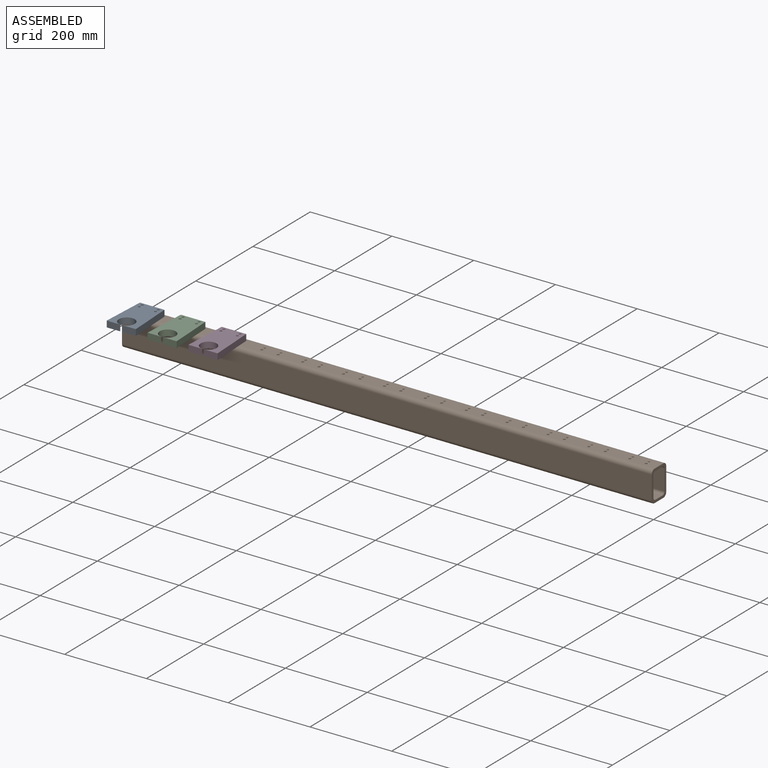
[diagram: assembled view]
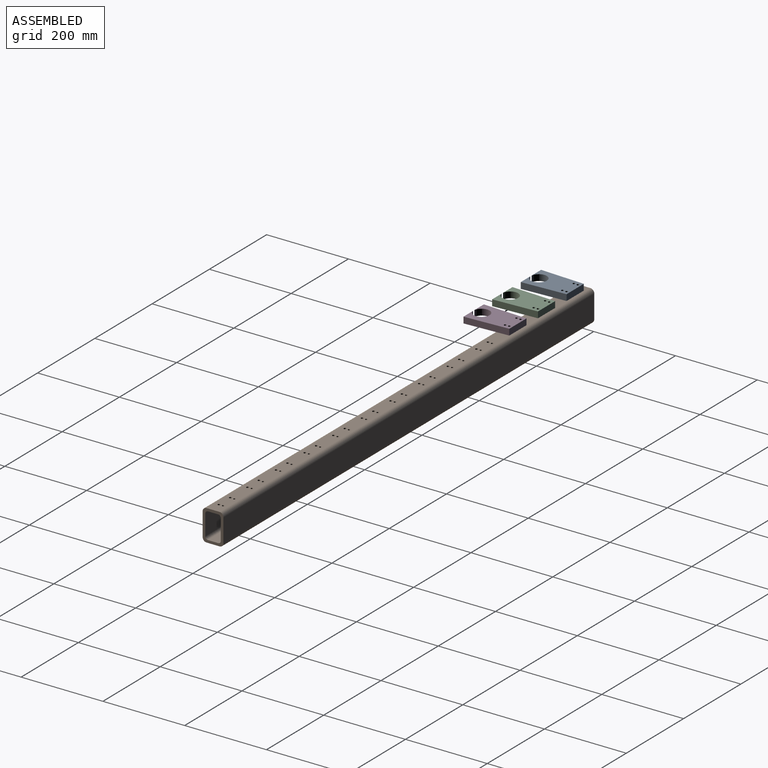
[diagram: assembled view, second angle]
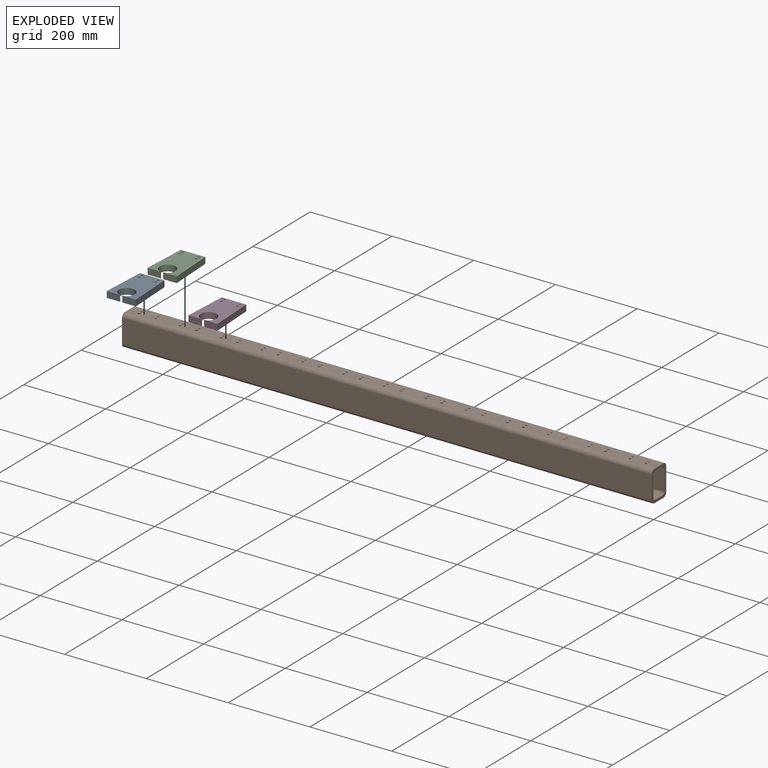
[diagram: exploded view]
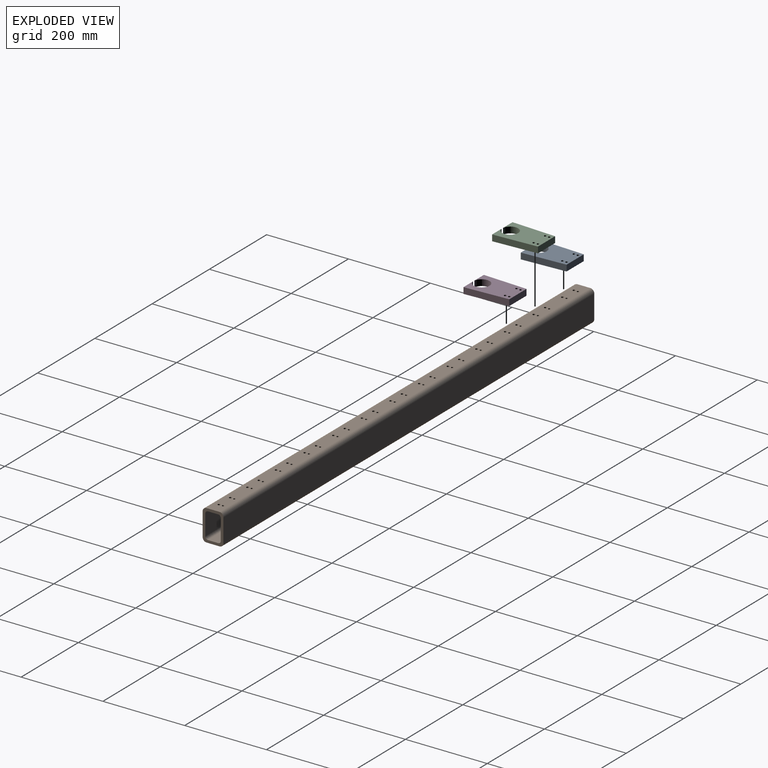
[diagram: exploded view, second angle]
ASSEMBLY  parts=4 mates=6
PART A: 12 faces, bbox 71.1x108.1x15 mm
  f0: plane 108.12x15mm, normal (-1,-0.05,0), area 1623.9mm2, adj f1,f9,f10,f11
  f1: plane 60x15mm, normal (0,-1,0), area 900mm2, adj f0,f2,f10,f11
  f2: plane 108.12x15mm, normal (1,-0.05,0), area 1623.9mm2, adj f1,f3,f10,f11
  f3: plane 33.21x15mm, normal (0,1,0), area 498.1mm2, adj f2,f4,f10,f11
  f4: cylinder r=19.5mm len=39mm, axis (0,0,-1), area 1767.5mm2, adj f3,f9,f10,f11
  f5: cylinder r=3mm len=15mm, axis (0,0,-1), area 282.7mm2, adj f10,f11
  f6: cylinder r=3mm len=15mm, axis (0,0,-1), area 282.7mm2, adj f10,f11
  f7: cylinder r=3mm len=15mm, axis (0,0,-1), area 282.7mm2, adj f10,f11
  f8: cylinder r=3mm len=15mm, axis (0,0,-1), area 282.7mm2, adj f10,f11
  f9: plane 33.21x15mm, normal (0,1,0), area 498.1mm2, adj f0,f4,f10,f11
  f10: plane 108.12x71.09mm, normal (0,0,1), area 5779.7mm2, adj f0,f1,f2,f3,f4,f5,f6,f7
  f11: plane 108.12x71.09mm, normal (0,0,-1), area 5779.7mm2, adj f0,f1,f2,f3,f4,f5,f6,f7
PART B: 122 faces, bbox 1295.4x50.8x76.2 mm
  f0: plane 76.2x50.8mm, normal (-1,0,0), area 1408.3mm2, adj f1,f3,f4,f5,f6,f7,f8,f9
  f1: plane 1295.4x57.15mm, normal (0,-1,0), area 74032.1mm2, adj f0,f2,f10,f12
  f2: plane 76.2x50.8mm, normal (1,0,0), area 1408.3mm2, adj f1,f3,f4,f5,f6,f7,f8,f9
  f3: plane 1295.4x57.15mm, normal (0,1,0), area 74032.1mm2, adj f0,f2,f11,f13
  f4: plane 1295.4x31.75mm, normal (0,0,1), area 39883.3mm2, adj f0,f2,f12,f13,f18,f20,f22,f24
  f5: plane 1295.4x31.75mm, normal (0,0,-1), area 41129mm2, adj f0,f2,f10,f11
  f6: plane 1295.4x50.8mm, normal (0,1,0), area 65806.3mm2, adj f0,f2,f14,f16
  f7: plane 1295.4x25.4mm, normal (0,0,1), area 32903.2mm2, adj f0,f2,f14,f15
  f8: plane 1295.4x50.8mm, normal (0,-1,0), area 65806.3mm2, adj f0,f2,f15,f17
  f9: plane 1295.4x25.4mm, normal (0,0,-1), area 32903.2mm2, adj f0,f2,f16,f17
  f10: cylinder r=9.53mm len=1295.4mm, axis (1,0,0), area 19381.6mm2, adj f0,f1,f2,f5
  f11: cylinder r=9.53mm len=1295.4mm, axis (-1,0,0), area 19381.6mm2, adj f0,f2,f3,f5
  f12: cylinder r=9.53mm len=1295.4mm, axis (-1,0,0), area 19381.6mm2, adj f0,f1,f2,f4
  f13: cylinder r=9.53mm len=1295.4mm, axis (1,0,0), area 19381.6mm2, adj f0,f2,f3,f4
  f14: cylinder r=6.35mm len=1295.4mm, axis (-1,0,0), area 12921mm2, adj f0,f2,f6,f7
  f15: cylinder r=6.35mm len=1295.4mm, axis (1,0,0), area 12921mm2, adj f0,f2,f7,f8
  f16: cylinder r=6.35mm len=1295.4mm, axis (1,0,0), area 12921mm2, adj f0,f2,f6,f9
  f17: cylinder r=6.35mm len=1295.4mm, axis (-1,0,0), area 12921mm2, adj f0,f2,f8,f9
  f18: cylinder r=2.5mm len=5mm, axis (0,0,1), area 78.5mm2, adj f4,f19
  f19: plane 5x5mm, normal (0,0,1), area 19.6mm2, adj f18
  f20: cylinder r=2.5mm len=5mm, axis (0,0,1), area 78.5mm2, adj f4,f21
  f21: plane 5x5mm, normal (0,0,1), area 19.6mm2, adj f20
  f22: cylinder r=3mm len=6mm, axis (0,0,1), area 94.2mm2, adj f4,f23
  f23: plane 6x6mm, normal (0,0,1), area 28.3mm2, adj f22
  f24: cylinder r=2.5mm len=5mm, axis (0,0,1), area 78.5mm2, adj f4,f25
  f25: plane 5x5mm, normal (0,0,1), area 19.6mm2, adj f24
  f26: cylinder r=3mm len=6mm, axis (0,0,1), area 94.2mm2, adj f4,f27
  f27: plane 6x6mm, normal (0,0,1), area 28.3mm2, adj f26
  f28: cylinder r=2.5mm len=5mm, axis (0,0,1), area 78.5mm2, adj f4,f29
  f29: plane 5x5mm, normal (0,0,1), area 19.6mm2, adj f28
  f30: cylinder r=3mm len=6mm, axis (0,0,1), area 94.2mm2, adj f4,f31
  f31: plane 6x6mm, normal (0,0,1), area 28.3mm2, adj f30
  f32: cylinder r=2.5mm len=5mm, axis (0,0,1), area 78.5mm2, adj f4,f33
  f33: plane 5x5mm, normal (0,0,1), area 19.6mm2, adj f32
  f34: cylinder r=3mm len=6mm, axis (0,0,1), area 94.2mm2, adj f4,f35
  f35: plane 6x6mm, normal (0,0,1), area 28.3mm2, adj f34
  f36: cylinder r=2.5mm len=5mm, axis (0,0,1), area 78.5mm2, adj f4,f37
  f37: plane 5x5mm, normal (0,0,1), area 19.6mm2, adj f36
  f38: cylinder r=3mm len=6mm, axis (0,0,1), area 94.2mm2, adj f4,f39
  f39: plane 6x6mm, normal (0,0,1), area 28.3mm2, adj f38
  f40: cylinder r=2.5mm len=5mm, axis (0,0,1), area 78.5mm2, adj f4,f41
  f41: plane 5x5mm, normal (0,0,1), area 19.6mm2, adj f40
  f42: cylinder r=3mm len=6mm, axis (0,0,1), area 94.2mm2, adj f4,f43
  f43: plane 6x6mm, normal (0,0,1), area 28.3mm2, adj f42
  f44: cylinder r=2.5mm len=5mm, axis (0,0,1), area 78.5mm2, adj f4,f45
  f45: plane 5x5mm, normal (0,0,1), area 19.6mm2, adj f44
  f46: cylinder r=3mm len=6mm, axis (0,0,1), area 94.2mm2, adj f4,f47
  f47: plane 6x6mm, normal (0,0,1), area 28.3mm2, adj f46
  f48: cylinder r=2.5mm len=5mm, axis (0,0,1), area 78.5mm2, adj f4,f49
  f49: plane 5x5mm, normal (0,0,1), area 19.6mm2, adj f48
  f50: cylinder r=3mm len=6mm, axis (0,0,1), area 94.2mm2, adj f4,f51
  f51: plane 6x6mm, normal (0,0,1), area 28.3mm2, adj f50
  f52: cylinder r=3mm len=6mm, axis (0,0,1), area 94.2mm2, adj f4,f53
  f53: plane 6x6mm, normal (0,0,1), area 28.3mm2, adj f52
  f54: cylinder r=2.5mm len=5mm, axis (0,0,1), area 78.5mm2, adj f4,f55
  f55: plane 5x5mm, normal (0,0,1), area 19.6mm2, adj f54
  f56: cylinder r=3mm len=6mm, axis (0,0,1), area 94.2mm2, adj f4,f57
  f57: plane 6x6mm, normal (0,0,1), area 28.3mm2, adj f56
  f58: cylinder r=2.5mm len=5mm, axis (0,0,1), area 78.5mm2, adj f4,f59
  f59: plane 5x5mm, normal (0,0,1), area 19.6mm2, adj f58
  f60: cylinder r=3mm len=6mm, axis (0,0,1), area 94.2mm2, adj f4,f61
  f61: plane 6x6mm, normal (0,0,1), area 28.3mm2, adj f60
  f62: cylinder r=2.5mm len=5mm, axis (0,0,1), area 78.5mm2, adj f4,f63
  f63: plane 5x5mm, normal (0,0,1), area 19.6mm2, adj f62
  f64: cylinder r=3mm len=6mm, axis (0,0,1), area 94.2mm2, adj f4,f65
  f65: plane 6x6mm, normal (0,0,1), area 28.3mm2, adj f64
  f66: cylinder r=2.5mm len=5mm, axis (0,0,1), area 78.5mm2, adj f4,f67
  f67: plane 5x5mm, normal (0,0,1), area 19.6mm2, adj f66
  f68: cylinder r=3mm len=6mm, axis (0,0,1), area 94.2mm2, adj f4,f69
  f69: plane 6x6mm, normal (0,0,1), area 28.3mm2, adj f68
  f70: cylinder r=2.5mm len=5mm, axis (0,0,1), area 78.5mm2, adj f4,f71
  f71: plane 5x5mm, normal (0,0,1), area 19.6mm2, adj f70
  f72: cylinder r=3mm len=6mm, axis (0,0,1), area 94.2mm2, adj f4,f73
  f73: plane 6x6mm, normal (0,0,1), area 28.3mm2, adj f72
  f74: cylinder r=2.5mm len=5mm, axis (0,0,1), area 78.5mm2, adj f4,f75
  f75: plane 5x5mm, normal (0,0,1), area 19.6mm2, adj f74
  f76: cylinder r=3mm len=6mm, axis (0,0,1), area 94.2mm2, adj f4,f77
  f77: plane 6x6mm, normal (0,0,1), area 28.3mm2, adj f76
  f78: cylinder r=3mm len=6mm, axis (0,0,1), area 94.2mm2, adj f4,f79
  f79: plane 6x6mm, normal (0,0,1), area 28.3mm2, adj f78
  f80: cylinder r=2.5mm len=5mm, axis (0,0,1), area 78.5mm2, adj f4,f81
  f81: plane 5x5mm, normal (0,0,1), area 19.6mm2, adj f80
  f82: cylinder r=2.5mm len=5mm, axis (0,0,1), area 78.5mm2, adj f4,f83
  f83: plane 5x5mm, normal (0,0,1), area 19.6mm2, adj f82
  f84: cylinder r=3mm len=6mm, axis (0,0,1), area 94.2mm2, adj f4,f85
  f85: plane 6x6mm, normal (0,0,1), area 28.3mm2, adj f84
  f86: cylinder r=2.5mm len=5mm, axis (0,0,1), area 78.5mm2, adj f4,f87
  f87: plane 5x5mm, normal (0,0,1), area 19.6mm2, adj f86
  f88: cylinder r=3mm len=6mm, axis (0,0,1), area 94.2mm2, adj f4,f89
  f89: plane 6x6mm, normal (0,0,1), area 28.3mm2, adj f88
  f90: cylinder r=2.5mm len=5mm, axis (0,0,1), area 78.5mm2, adj f4,f91
  f91: plane 5x5mm, normal (0,0,1), area 19.6mm2, adj f90
  f92: cylinder r=3mm len=6mm, axis (0,0,1), area 94.2mm2, adj f4,f93
  f93: plane 6x6mm, normal (0,0,1), area 28.3mm2, adj f92
  f94: cylinder r=2.5mm len=5mm, axis (0,0,1), area 78.5mm2, adj f4,f95
  f95: plane 5x5mm, normal (0,0,1), area 19.6mm2, adj f94
  f96: cylinder r=3mm len=6mm, axis (0,0,1), area 94.2mm2, adj f4,f97
  f97: plane 6x6mm, normal (0,0,1), area 28.3mm2, adj f96
  f98: cylinder r=2.5mm len=5mm, axis (0,0,1), area 78.5mm2, adj f4,f99
  f99: plane 5x5mm, normal (0,0,1), area 19.6mm2, adj f98
  f100: cylinder r=3mm len=6mm, axis (0,0,1), area 94.2mm2, adj f4,f101
  f101: plane 6x6mm, normal (0,0,1), area 28.3mm2, adj f100
  f102: cylinder r=2.5mm len=5mm, axis (0,0,1), area 78.5mm2, adj f4,f103
  f103: plane 5x5mm, normal (0,0,1), area 19.6mm2, adj f102
  f104: cylinder r=3mm len=6mm, axis (0,0,1), area 94.2mm2, adj f4,f105
  f105: plane 6x6mm, normal (0,0,1), area 28.3mm2, adj f104
  f106: cylinder r=2.5mm len=5mm, axis (0,0,1), area 78.5mm2, adj f4,f107
  f107: plane 5x5mm, normal (0,0,1), area 19.6mm2, adj f106
  f108: cylinder r=3mm len=6mm, axis (0,0,1), area 94.2mm2, adj f4,f109
  f109: plane 6x6mm, normal (0,0,1), area 28.3mm2, adj f108
  f110: cylinder r=2.5mm len=5mm, axis (0,0,1), area 78.5mm2, adj f4,f111
  f111: plane 5x5mm, normal (0,0,1), area 19.6mm2, adj f110
  f112: cylinder r=3mm len=6mm, axis (0,0,1), area 94.2mm2, adj f4,f113
  f113: plane 6x6mm, normal (0,0,1), area 28.3mm2, adj f112
  f114: cylinder r=2.5mm len=5mm, axis (0,0,1), area 78.5mm2, adj f4,f115
  f115: plane 5x5mm, normal (0,0,1), area 19.6mm2, adj f114
  f116: cylinder r=3mm len=6mm, axis (0,0,1), area 94.2mm2, adj f4,f117
  f117: plane 6x6mm, normal (0,0,1), area 28.3mm2, adj f116
  f118: cylinder r=2.5mm len=5mm, axis (0,0,1), area 78.5mm2, adj f4,f119
  f119: plane 5x5mm, normal (0,0,1), area 19.6mm2, adj f118
  f120: cylinder r=3mm len=6mm, axis (0,0,1), area 94.2mm2, adj f4,f121
  f121: plane 6x6mm, normal (0,0,1), area 28.3mm2, adj f120
PART C: same geometry as A
PART D: same geometry as A
PLACE A rot(axis=(0,0,1),180deg) t=(-874.01,-286.34,-26.32)mm
PLACE B rot(axis=(1,0,0),0deg) t=(-273.95,-229.04,-102.52)mm
PLACE C rot(axis=(0,0,-1),180deg) t=(-774.01,-286.34,-26.32)mm
PLACE D rot(axis=(0,0,-1),180deg) t=(-674.01,-286.34,-26.32)mm
MATE planar A.f11 <-> B.f62  axis (0,0,-1) through (-874.01,-266.63,-26.32)mm
MATE cylindrical B.f76 <-> A.f7  axis (0,0,1) through (-894.01,-234.04,-26.32)mm
MATE cylindrical B.f74 <-> C.f6  axis (0,0,1) through (-793.76,-224.04,-26.32)mm
MATE planar C.f11 <-> B.f4  axis (0,0,-1) through (-774.01,-266.63,-26.32)mm
MATE cylindrical B.f82 <-> D.f6  axis (0,0,1) through (-693.76,-224.04,-26.32)mm
MATE planar B.f4 <-> D.f11  axis (0,0,1) through (-273.95,-229.01,-26.32)mm
